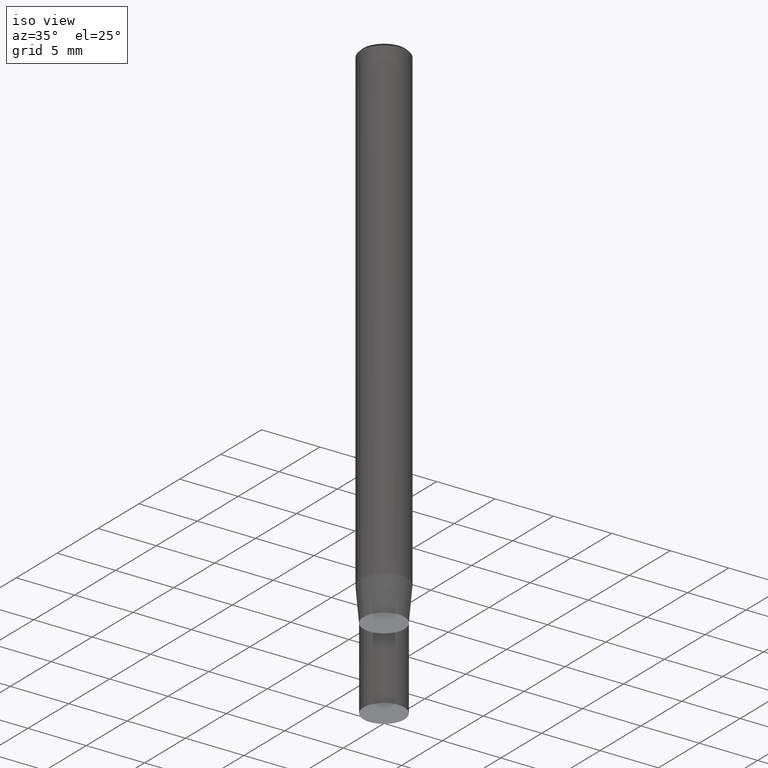
[diagram: clean part render]
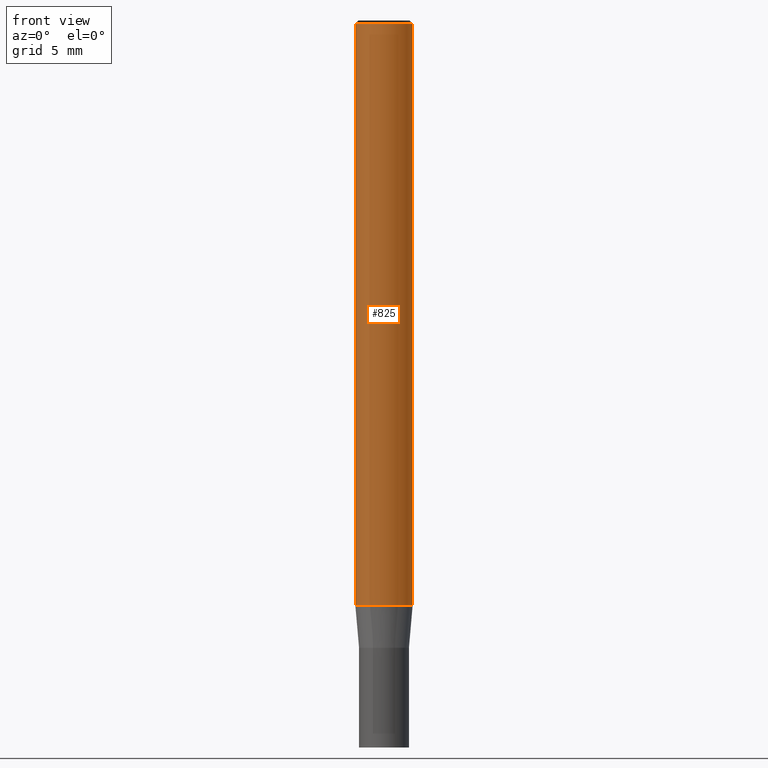
[diagram: tour spotlight — one face highlighted and labeled with its STEP entity id]
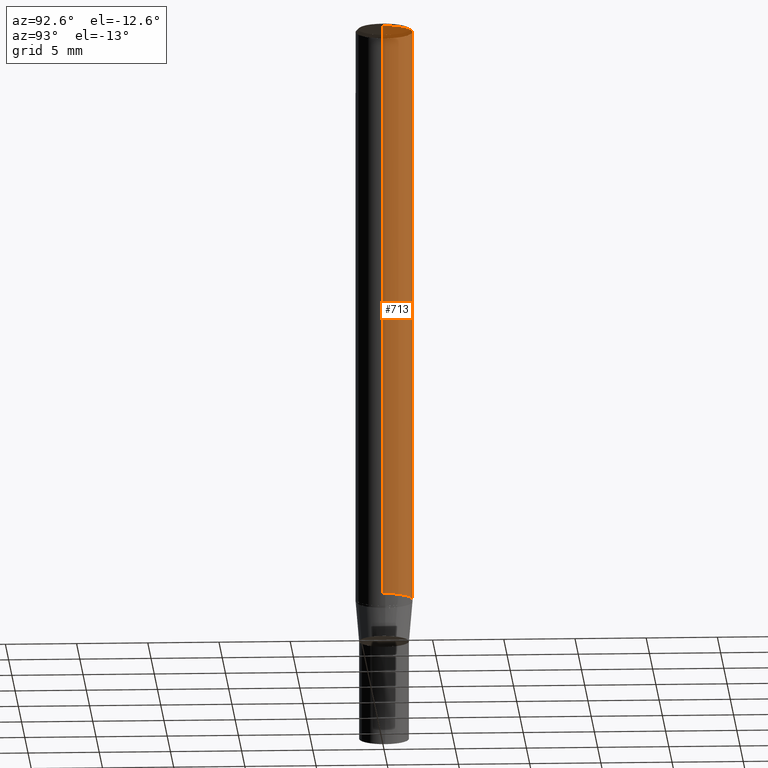
[diagram: tour spotlight — one face highlighted and labeled with its STEP entity id]
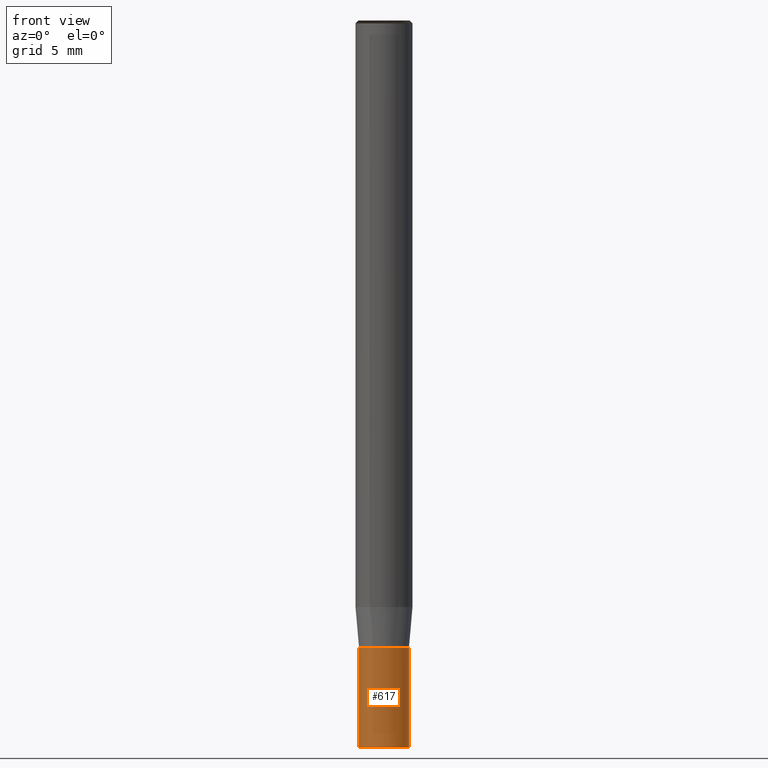
[diagram: tour spotlight — one face highlighted and labeled with its STEP entity id]
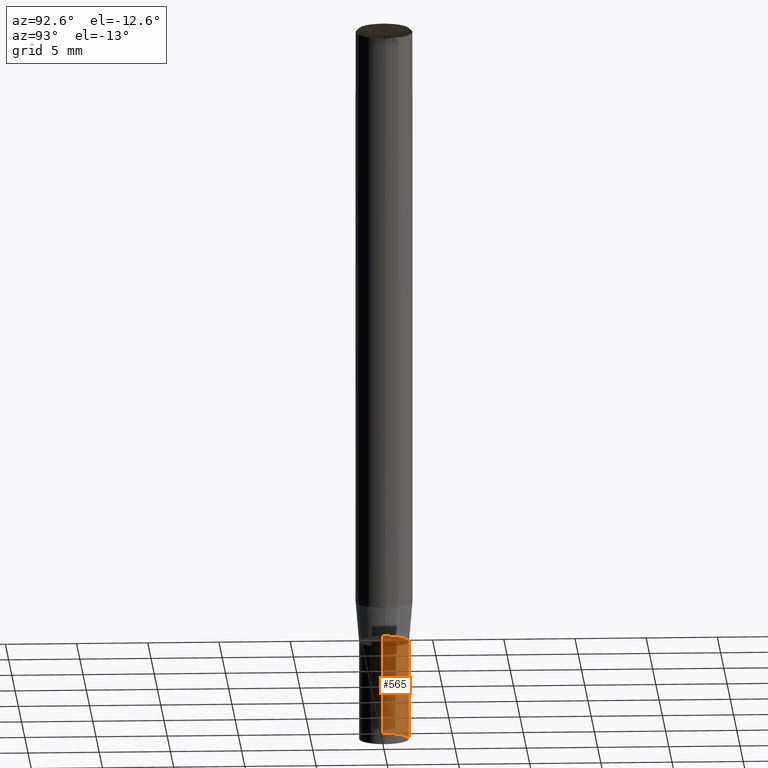
[diagram: tour spotlight — one face highlighted and labeled with its STEP entity id]
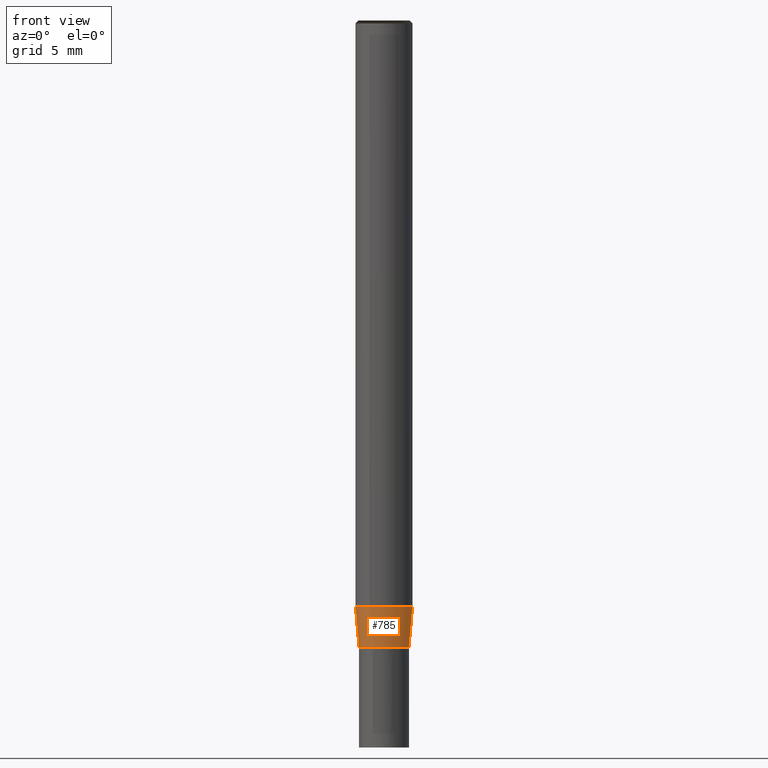
[diagram: tour spotlight — one face highlighted and labeled with its STEP entity id]
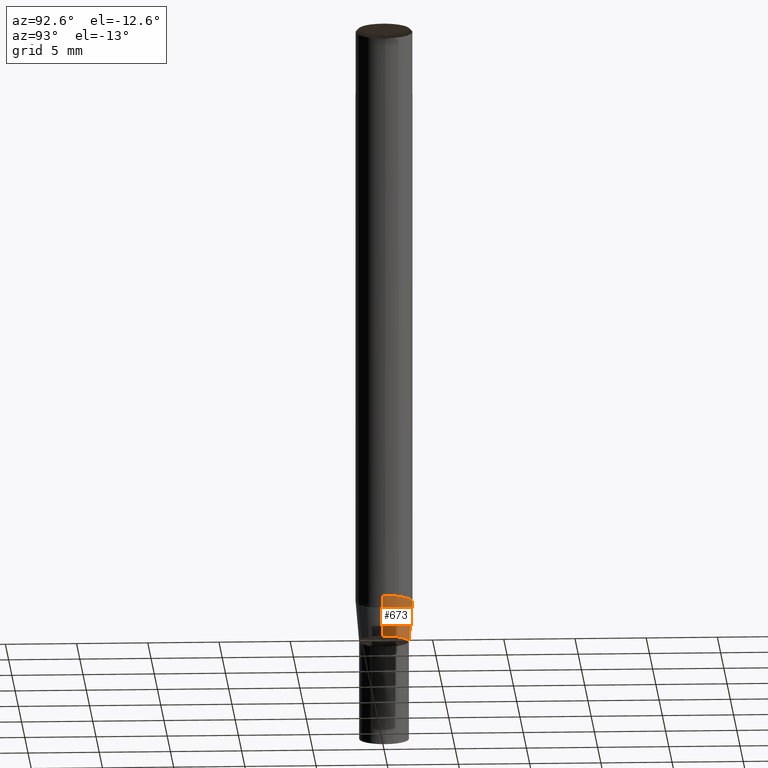
[diagram: tour spotlight — one face highlighted and labeled with its STEP entity id]
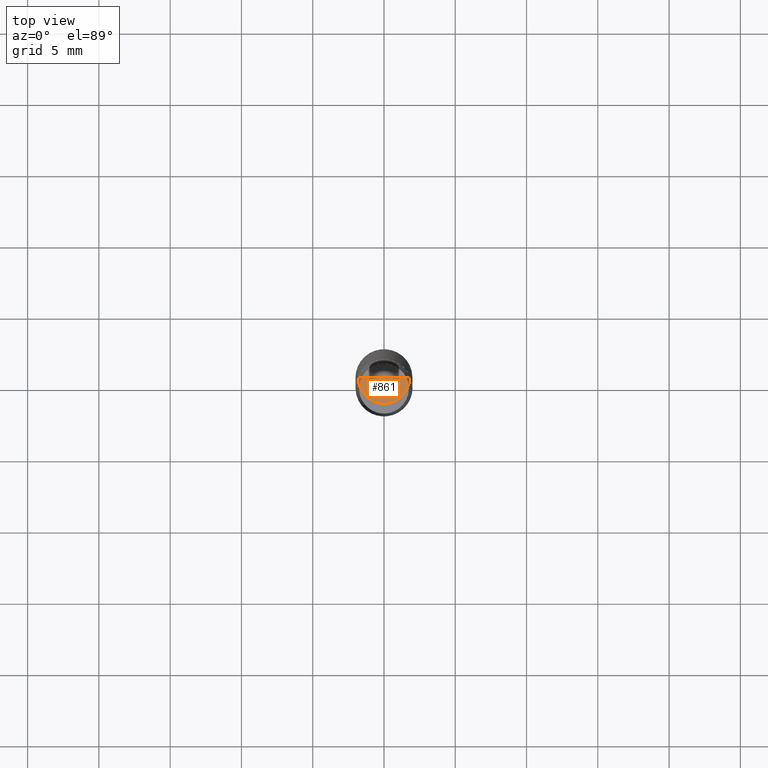
[diagram: tour spotlight — one face highlighted and labeled with its STEP entity id]
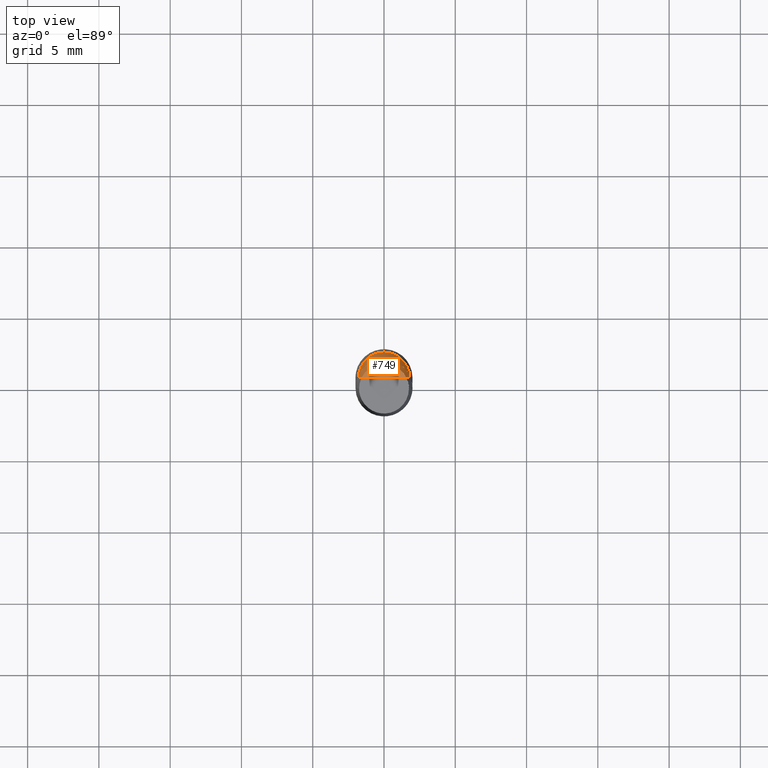
[diagram: tour spotlight — one face highlighted and labeled with its STEP entity id]
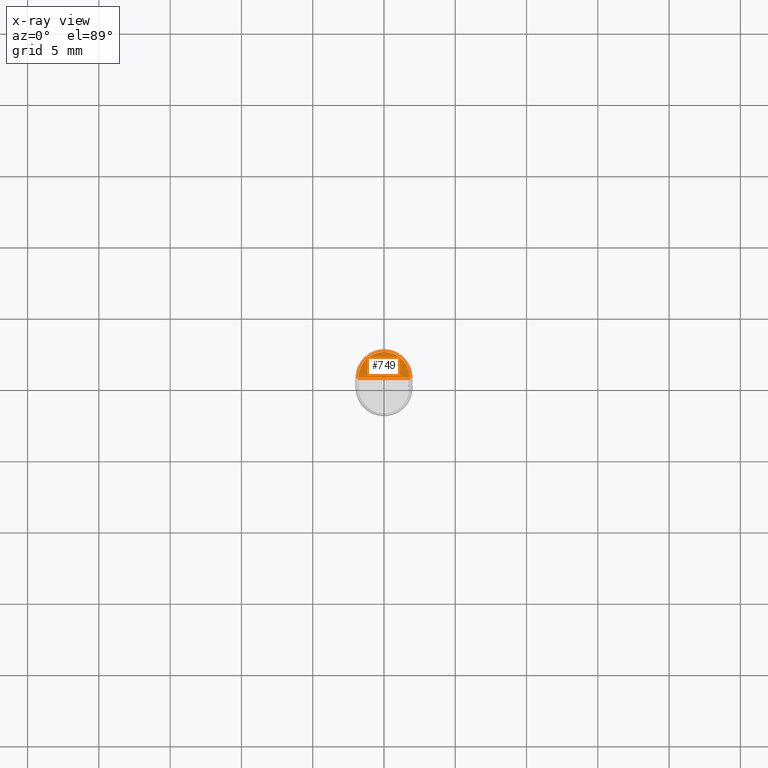
[diagram: x-ray of the same camera — body ghosted, this tour face saturated]
A machine part: a face-by-face anatomy tour. The part has 18 B-rep faces; the first image is the clean iso view, then the 8 largest visible faces are spotlighted one at a time (largest first), each with its STEP entity span.

Face 1 — front view, entity #825. In plain terms, the highlighted face is a freeform B-spline surface patch.
Definition (entity closure, byte-faithful):
#496=CARTESIAN_POINT('',(2.0,0.0,0.0));
#500=CARTESIAN_POINT('',(-2.0,0.0,0.0));
#501=CARTESIAN_POINT('',(2.0,0.0,40.8));
#505=CARTESIAN_POINT('',(-2.0,0.0,40.8));
#515=CARTESIAN_POINT('',(-2.0,-2.0,0.0));
#516=CARTESIAN_POINT('',(0.0,-2.0,0.0));
#517=CARTESIAN_POINT('',(2.0,-2.0,0.0));
#518=CARTESIAN_POINT('',(-2.0,-2.0,40.8));
#519=CARTESIAN_POINT('',(0.0,-2.0,40.8));
#520=CARTESIAN_POINT('',(2.0,-2.0,40.8));
#806=(
BOUNDED_SURFACE()
B_SPLINE_SURFACE(1,2,(
(#500,#515,#516,#517,#496),
(#505,#518,#519,#520,#501)
), .UNSPECIFIED.,.F.,.F.,.F.)
B_SPLINE_SURFACE_WITH_KNOTS((2,2),(3,2,3),(
0.0,1.0),(
0.0,0.5,1.0), .UNSPECIFIED.)
GEOMETRIC_REPRESENTATION_ITEM()
RATIONAL_B_SPLINE_SURFACE(((1.0,0.707106781187,1.0,0.707106781187,1.0),
(1.0,0.707106781187,1.0,0.707106781187,1.0)
))
REPRESENTATION_ITEM('')
SURFACE()
);
#807=(
BOUNDED_CURVE()
B_SPLINE_CURVE(2,(#496,#517,#516,#515,#500),.UNSPECIFIED.,.F.,.F.)
B_SPLINE_CURVE_WITH_KNOTS((3,2,3),
(0.0,0.5,1.0),.UNSPECIFIED.)
CURVE()
GEOMETRIC_REPRESENTATION_ITEM()
RATIONAL_B_SPLINE_CURVE((1.0,0.707106781187,1.0,0.707106781187,1.0))
REPRESENTATION_ITEM('')
);
#808=(
BOUNDED_CURVE()
B_SPLINE_CURVE(1,(#500,#505),.UNSPECIFIED.,.F.,.F.)
B_SPLINE_CURVE_WITH_KNOTS((2,2),
(0.0,1.0),.UNSPECIFIED.)
CURVE()
GEOMETRIC_REPRESENTATION_ITEM()
RATIONAL_B_SPLINE_CURVE((1.0,1.0))
REPRESENTATION_ITEM('')
);
#809=(
BOUNDED_CURVE()
B_SPLINE_CURVE(2,(#505,#518,#519,#520,#501),.UNSPECIFIED.,.F.,.F.)
B_SPLINE_CURVE_WITH_KNOTS((3,2,3),
(0.0,0.5,1.0),.UNSPECIFIED.)
CURVE()
GEOMETRIC_REPRESENTATION_ITEM()
RATIONAL_B_SPLINE_CURVE((1.0,0.707106781187,1.0,0.707106781187,1.0))
REPRESENTATION_ITEM('')
);
#810=(
BOUNDED_CURVE()
B_SPLINE_CURVE(1,(#501,#496),.UNSPECIFIED.,.F.,.F.)
B_SPLINE_CURVE_WITH_KNOTS((2,2),
(0.0,1.0),.UNSPECIFIED.)
CURVE()
GEOMETRIC_REPRESENTATION_ITEM()
RATIONAL_B_SPLINE_CURVE((1.0,1.0))
REPRESENTATION_ITEM('')
);
#811=VERTEX_POINT('',#496);
#812=VERTEX_POINT('',#500);
#813=VERTEX_POINT('',#501);
#814=VERTEX_POINT('',#505);
#815=EDGE_CURVE('',#811,#812,#807,.T.);
#816=EDGE_CURVE('',#812,#814,#808,.T.);
#817=EDGE_CURVE('',#814,#813,#809,.T.);
#818=EDGE_CURVE('',#813,#811,#810,.T.);
#819=ORIENTED_EDGE('',*,*,#815,.T.);
#820=ORIENTED_EDGE('',*,*,#816,.T.);
#821=ORIENTED_EDGE('',*,*,#817,.T.);
#822=ORIENTED_EDGE('',*,*,#818,.T.);
#823=EDGE_LOOP('',(#819,#820,#821,#822));
#824=FACE_OUTER_BOUND('',#823,.T.);
#825=ADVANCED_FACE('',(#824),#806,.T.);

Face 2 — auxiliary view, entity #713. In plain terms, the highlighted face is a freeform B-spline surface patch.
Definition (entity closure, byte-faithful):
#496=CARTESIAN_POINT('',(2.0,0.0,0.0));
#497=CARTESIAN_POINT('',(2.0,2.0,0.0));
#498=CARTESIAN_POINT('',(0.0,2.0,0.0));
#499=CARTESIAN_POINT('',(-2.0,2.0,0.0));
#500=CARTESIAN_POINT('',(-2.0,0.0,0.0));
#501=CARTESIAN_POINT('',(2.0,0.0,40.8));
#502=CARTESIAN_POINT('',(2.0,2.0,40.8));
#503=CARTESIAN_POINT('',(0.0,2.0,40.8));
#504=CARTESIAN_POINT('',(-2.0,2.0,40.8));
#505=CARTESIAN_POINT('',(-2.0,0.0,40.8));
#694=(
BOUNDED_SURFACE()
B_SPLINE_SURFACE(1,2,(
(#496,#497,#498,#499,#500),
(#501,#502,#503,#504,#505)
), .UNSPECIFIED.,.F.,.F.,.F.)
B_SPLINE_SURFACE_WITH_KNOTS((2,2),(3,2,3),(
0.0,1.0),(
0.0,0.5,1.0), .UNSPECIFIED.)
GEOMETRIC_REPRESENTATION_ITEM()
RATIONAL_B_SPLINE_SURFACE(((1.0,0.707106781187,1.0,0.707106781187,1.0),
(1.0,0.707106781187,1.0,0.707106781187,1.0)
))
REPRESENTATION_ITEM('')
SURFACE()
);
#695=(
BOUNDED_CURVE()
B_SPLINE_CURVE(2,(#500,#499,#498,#497,#496),.UNSPECIFIED.,.F.,.F.)
B_SPLINE_CURVE_WITH_KNOTS((3,2,3),
(0.0,0.5,1.0),.UNSPECIFIED.)
CURVE()
GEOMETRIC_REPRESENTATION_ITEM()
RATIONAL_B_SPLINE_CURVE((1.0,0.707106781187,1.0,0.707106781187,1.0))
REPRESENTATION_ITEM('')
);
#696=(
BOUNDED_CURVE()
B_SPLINE_CURVE(1,(#496,#501),.UNSPECIFIED.,.F.,.F.)
B_SPLINE_CURVE_WITH_KNOTS((2,2),
(0.0,1.0),.UNSPECIFIED.)
CURVE()
GEOMETRIC_REPRESENTATION_ITEM()
RATIONAL_B_SPLINE_CURVE((1.0,1.0))
REPRESENTATION_ITEM('')
);
#697=(
BOUNDED_CURVE()
B_SPLINE_CURVE(2,(#501,#502,#503,#504,#505),.UNSPECIFIED.,.F.,.F.)
B_SPLINE_CURVE_WITH_KNOTS((3,2,3),
(0.0,0.5,1.0),.UNSPECIFIED.)
CURVE()
GEOMETRIC_REPRESENTATION_ITEM()
RATIONAL_B_SPLINE_CURVE((1.0,0.707106781187,1.0,0.707106781187,1.0))
REPRESENTATION_ITEM('')
);
#698=(
BOUNDED_CURVE()
B_SPLINE_CURVE(1,(#505,#500),.UNSPECIFIED.,.F.,.F.)
B_SPLINE_CURVE_WITH_KNOTS((2,2),
(0.0,1.0),.UNSPECIFIED.)
CURVE()
GEOMETRIC_REPRESENTATION_ITEM()
RATIONAL_B_SPLINE_CURVE((1.0,1.0))
REPRESENTATION_ITEM('')
);
#699=VERTEX_POINT('',#496);
#700=VERTEX_POINT('',#500);
#701=VERTEX_POINT('',#501);
#702=VERTEX_POINT('',#505);
#703=EDGE_CURVE('',#700,#699,#695,.T.);
#704=EDGE_CURVE('',#699,#701,#696,.T.);
#705=EDGE_CURVE('',#701,#702,#697,.T.);
#706=EDGE_CURVE('',#702,#700,#698,.T.);
#707=ORIENTED_EDGE('',*,*,#703,.T.);
#708=ORIENTED_EDGE('',*,*,#704,.T.);
#709=ORIENTED_EDGE('',*,*,#705,.T.);
#710=ORIENTED_EDGE('',*,*,#706,.T.);
#711=EDGE_LOOP('',(#707,#708,#709,#710));
#712=FACE_OUTER_BOUND('',#711,.T.);
#713=ADVANCED_FACE('',(#712),#694,.T.);

Face 3 — front view, entity #617. In plain terms, the highlighted face is a freeform B-spline surface patch.
Definition (entity closure, byte-faithful):
#109=CARTESIAN_POINT('',(0.0,-1.75,-10.0));
#475=CARTESIAN_POINT('',(1.75,0.0,-10.0));
#479=CARTESIAN_POINT('',(-1.75,0.0,-10.0));
#480=CARTESIAN_POINT('',(1.75,0.0,-3.0));
#484=CARTESIAN_POINT('',(-1.75,0.0,-3.0));
#486=CARTESIAN_POINT('',(-1.75,-1.75,-10.0));
#487=CARTESIAN_POINT('',(1.75,-1.75,-10.0));
#488=CARTESIAN_POINT('',(-1.75,-1.75,-3.0));
#489=CARTESIAN_POINT('',(0.0,-1.75,-3.0));
#490=CARTESIAN_POINT('',(1.75,-1.75,-3.0));
#598=(
BOUNDED_SURFACE()
B_SPLINE_SURFACE(1,2,(
(#479,#486,#109,#487,#475),
(#484,#488,#489,#490,#480)
), .UNSPECIFIED.,.F.,.F.,.F.)
B_SPLINE_SURFACE_WITH_KNOTS((2,2),(3,2,3),(
0.0,1.0),(
0.0,0.5,1.0), .UNSPECIFIED.)
GEOMETRIC_REPRESENTATION_ITEM()
RATIONAL_B_SPLINE_SURFACE(((1.0,0.707106781187,1.0,0.707106781187,1.0),
(1.0,0.707106781187,1.0,0.707106781187,1.0)
))
REPRESENTATION_ITEM('')
SURFACE()
);
#599=(
BOUNDED_CURVE()
B_SPLINE_CURVE(2,(#475,#487,#109,#486,#479),.UNSPECIFIED.,.F.,.F.)
B_SPLINE_CURVE_WITH_KNOTS((3,2,3),
(0.0,0.5,1.0),.UNSPECIFIED.)
CURVE()
GEOMETRIC_REPRESENTATION_ITEM()
RATIONAL_B_SPLINE_CURVE((1.0,0.707106781187,1.0,0.707106781187,1.0))
REPRESENTATION_ITEM('')
);
#600=(
BOUNDED_CURVE()
B_SPLINE_CURVE(1,(#479,#484),.UNSPECIFIED.,.F.,.F.)
B_SPLINE_CURVE_WITH_KNOTS((2,2),
(0.0,1.0),.UNSPECIFIED.)
CURVE()
GEOMETRIC_REPRESENTATION_ITEM()
RATIONAL_B_SPLINE_CURVE((1.0,1.0))
REPRESENTATION_ITEM('')
);
#601=(
BOUNDED_CURVE()
B_SPLINE_CURVE(2,(#484,#488,#489,#490,#480),.UNSPECIFIED.,.F.,.F.)
B_SPLINE_CURVE_WITH_KNOTS((3,2,3),
(0.0,0.5,1.0),.UNSPECIFIED.)
CURVE()
GEOMETRIC_REPRESENTATION_ITEM()
RATIONAL_B_SPLINE_CURVE((1.0,0.707106781187,1.0,0.707106781187,1.0))
REPRESENTATION_ITEM('')
);
#602=(
BOUNDED_CURVE()
B_SPLINE_CURVE(1,(#480,#475),.UNSPECIFIED.,.F.,.F.)
B_SPLINE_CURVE_WITH_KNOTS((2,2),
(0.0,1.0),.UNSPECIFIED.)
CURVE()
GEOMETRIC_REPRESENTATION_ITEM()
RATIONAL_B_SPLINE_CURVE((1.0,1.0))
REPRESENTATION_ITEM('')
);
#603=VERTEX_POINT('',#475);
#604=VERTEX_POINT('',#479);
#605=VERTEX_POINT('',#480);
#606=VERTEX_POINT('',#484);
#607=EDGE_CURVE('',#603,#604,#599,.T.);
#608=EDGE_CURVE('',#604,#606,#600,.T.);
#609=EDGE_CURVE('',#606,#605,#601,.T.);
#610=EDGE_CURVE('',#605,#603,#602,.T.);
#611=ORIENTED_EDGE('',*,*,#607,.T.);
#612=ORIENTED_EDGE('',*,*,#608,.T.);
#613=ORIENTED_EDGE('',*,*,#609,.T.);
#614=ORIENTED_EDGE('',*,*,#610,.T.);
#615=EDGE_LOOP('',(#611,#612,#613,#614));
#616=FACE_OUTER_BOUND('',#615,.T.);
#617=ADVANCED_FACE('',(#616),#598,.T.);

Face 4 — auxiliary view, entity #565. In plain terms, the highlighted face is a freeform B-spline surface patch.
Definition (entity closure, byte-faithful):
#475=CARTESIAN_POINT('',(1.75,0.0,-10.0));
#476=CARTESIAN_POINT('',(1.75,1.75,-10.0));
#477=CARTESIAN_POINT('',(0.0,1.75,-10.0));
#478=CARTESIAN_POINT('',(-1.75,1.75,-10.0));
#479=CARTESIAN_POINT('',(-1.75,0.0,-10.0));
#480=CARTESIAN_POINT('',(1.75,0.0,-3.0));
#481=CARTESIAN_POINT('',(1.75,1.75,-3.0));
#482=CARTESIAN_POINT('',(0.0,1.75,-3.0));
#483=CARTESIAN_POINT('',(-1.75,1.75,-3.0));
#484=CARTESIAN_POINT('',(-1.75,0.0,-3.0));
#546=(
BOUNDED_SURFACE()
B_SPLINE_SURFACE(1,2,(
(#475,#476,#477,#478,#479),
(#480,#481,#482,#483,#484)
), .UNSPECIFIED.,.F.,.F.,.F.)
B_SPLINE_SURFACE_WITH_KNOTS((2,2),(3,2,3),(
0.0,1.0),(
0.0,0.5,1.0), .UNSPECIFIED.)
GEOMETRIC_REPRESENTATION_ITEM()
RATIONAL_B_SPLINE_SURFACE(((1.0,0.707106781187,1.0,0.707106781187,1.0),
(1.0,0.707106781187,1.0,0.707106781187,1.0)
))
REPRESENTATION_ITEM('')
SURFACE()
);
#547=(
BOUNDED_CURVE()
B_SPLINE_CURVE(2,(#479,#478,#477,#476,#475),.UNSPECIFIED.,.F.,.F.)
B_SPLINE_CURVE_WITH_KNOTS((3,2,3),
(0.0,0.5,1.0),.UNSPECIFIED.)
CURVE()
GEOMETRIC_REPRESENTATION_ITEM()
RATIONAL_B_SPLINE_CURVE((1.0,0.707106781187,1.0,0.707106781187,1.0))
REPRESENTATION_ITEM('')
);
#548=(
BOUNDED_CURVE()
B_SPLINE_CURVE(1,(#475,#480),.UNSPECIFIED.,.F.,.F.)
B_SPLINE_CURVE_WITH_KNOTS((2,2),
(0.0,1.0),.UNSPECIFIED.)
CURVE()
GEOMETRIC_REPRESENTATION_ITEM()
RATIONAL_B_SPLINE_CURVE((1.0,1.0))
REPRESENTATION_ITEM('')
);
#549=(
BOUNDED_CURVE()
B_SPLINE_CURVE(2,(#480,#481,#482,#483,#484),.UNSPECIFIED.,.F.,.F.)
B_SPLINE_CURVE_WITH_KNOTS((3,2,3),
(0.0,0.5,1.0),.UNSPECIFIED.)
CURVE()
GEOMETRIC_REPRESENTATION_ITEM()
RATIONAL_B_SPLINE_CURVE((1.0,0.707106781187,1.0,0.707106781187,1.0))
REPRESENTATION_ITEM('')
);
#550=(
BOUNDED_CURVE()
B_SPLINE_CURVE(1,(#484,#479),.UNSPECIFIED.,.F.,.F.)
B_SPLINE_CURVE_WITH_KNOTS((2,2),
(0.0,1.0),.UNSPECIFIED.)
CURVE()
GEOMETRIC_REPRESENTATION_ITEM()
RATIONAL_B_SPLINE_CURVE((1.0,1.0))
REPRESENTATION_ITEM('')
);
#551=VERTEX_POINT('',#475);
#552=VERTEX_POINT('',#479);
#553=VERTEX_POINT('',#480);
#554=VERTEX_POINT('',#484);
#555=EDGE_CURVE('',#552,#551,#547,.T.);
#556=EDGE_CURVE('',#551,#553,#548,.T.);
#557=EDGE_CURVE('',#553,#554,#549,.T.);
#558=EDGE_CURVE('',#554,#552,#550,.T.);
#559=ORIENTED_EDGE('',*,*,#555,.T.);
#560=ORIENTED_EDGE('',*,*,#556,.T.);
#561=ORIENTED_EDGE('',*,*,#557,.T.);
#562=ORIENTED_EDGE('',*,*,#558,.T.);
#563=EDGE_LOOP('',(#559,#560,#561,#562));
#564=FACE_OUTER_BOUND('',#563,.T.);
#565=ADVANCED_FACE('',(#564),#546,.T.);

Face 5 — front view, entity #785. In plain terms, the highlighted face is a freeform B-spline surface patch.
Definition (entity closure, byte-faithful):
#480=CARTESIAN_POINT('',(1.75,0.0,-3.0));
#484=CARTESIAN_POINT('',(-1.75,0.0,-3.0));
#488=CARTESIAN_POINT('',(-1.75,-1.75,-3.0));
#489=CARTESIAN_POINT('',(0.0,-1.75,-3.0));
#490=CARTESIAN_POINT('',(1.75,-1.75,-3.0));
#491=CARTESIAN_POINT('',(2.0,0.0,-0.14248692431));
#495=CARTESIAN_POINT('',(-2.0,0.0,-0.14248692431));
#512=CARTESIAN_POINT('',(-2.0,-2.0,-0.14248692431));
#513=CARTESIAN_POINT('',(0.0,-2.0,-0.14248692431));
#514=CARTESIAN_POINT('',(2.0,-2.0,-0.14248692431));
#766=(
BOUNDED_SURFACE()
B_SPLINE_SURFACE(1,2,(
(#484,#488,#489,#490,#480),
(#495,#512,#513,#514,#491)
), .UNSPECIFIED.,.F.,.F.,.F.)
B_SPLINE_SURFACE_WITH_KNOTS((2,2),(3,2,3),(
0.0,1.0),(
0.0,0.5,1.0), .UNSPECIFIED.)
GEOMETRIC_REPRESENTATION_ITEM()
RATIONAL_B_SPLINE_SURFACE(((1.0,0.707106781187,1.0,0.707106781187,1.0),
(1.0,0.707106781187,1.0,0.707106781187,1.0)
))
REPRESENTATION_ITEM('')
SURFACE()
);
#767=(
BOUNDED_CURVE()
B_SPLINE_CURVE(2,(#480,#490,#489,#488,#484),.UNSPECIFIED.,.F.,.F.)
B_SPLINE_CURVE_WITH_KNOTS((3,2,3),
(0.0,0.5,1.0),.UNSPECIFIED.)
CURVE()
GEOMETRIC_REPRESENTATION_ITEM()
RATIONAL_B_SPLINE_CURVE((1.0,0.707106781187,1.0,0.707106781187,1.0))
REPRESENTATION_ITEM('')
);
#768=(
BOUNDED_CURVE()
B_SPLINE_CURVE(1,(#484,#495),.UNSPECIFIED.,.F.,.F.)
B_SPLINE_CURVE_WITH_KNOTS((2,2),
(0.0,1.0),.UNSPECIFIED.)
CURVE()
GEOMETRIC_REPRESENTATION_ITEM()
RATIONAL_B_SPLINE_CURVE((1.0,1.0))
REPRESENTATION_ITEM('')
);
#769=(
BOUNDED_CURVE()
B_SPLINE_CURVE(2,(#495,#512,#513,#514,#491),.UNSPECIFIED.,.F.,.F.)
B_SPLINE_CURVE_WITH_KNOTS((3,2,3),
(0.0,0.5,1.0),.UNSPECIFIED.)
CURVE()
GEOMETRIC_REPRESENTATION_ITEM()
RATIONAL_B_SPLINE_CURVE((1.0,0.707106781187,1.0,0.707106781187,1.0))
REPRESENTATION_ITEM('')
);
#770=(
BOUNDED_CURVE()
B_SPLINE_CURVE(1,(#491,#480),.UNSPECIFIED.,.F.,.F.)
B_SPLINE_CURVE_WITH_KNOTS((2,2),
(0.0,1.0),.UNSPECIFIED.)
CURVE()
GEOMETRIC_REPRESENTATION_ITEM()
RATIONAL_B_SPLINE_CURVE((1.0,1.0))
REPRESENTATION_ITEM('')
);
#771=VERTEX_POINT('',#480);
#772=VERTEX_POINT('',#484);
#773=VERTEX_POINT('',#491);
#774=VERTEX_POINT('',#495);
#775=EDGE_CURVE('',#771,#772,#767,.T.);
#776=EDGE_CURVE('',#772,#774,#768,.T.);
#777=EDGE_CURVE('',#774,#773,#769,.T.);
#778=EDGE_CURVE('',#773,#771,#770,.T.);
#779=ORIENTED_EDGE('',*,*,#775,.T.);
#780=ORIENTED_EDGE('',*,*,#776,.T.);
#781=ORIENTED_EDGE('',*,*,#777,.T.);
#782=ORIENTED_EDGE('',*,*,#778,.T.);
#783=EDGE_LOOP('',(#779,#780,#781,#782));
#784=FACE_OUTER_BOUND('',#783,.T.);
#785=ADVANCED_FACE('',(#784),#766,.T.);

Face 6 — auxiliary view, entity #673. In plain terms, the highlighted face is a freeform B-spline surface patch.
Definition (entity closure, byte-faithful):
#480=CARTESIAN_POINT('',(1.75,0.0,-3.0));
#481=CARTESIAN_POINT('',(1.75,1.75,-3.0));
#482=CARTESIAN_POINT('',(0.0,1.75,-3.0));
#483=CARTESIAN_POINT('',(-1.75,1.75,-3.0));
#484=CARTESIAN_POINT('',(-1.75,0.0,-3.0));
#491=CARTESIAN_POINT('',(2.0,0.0,-0.14248692431));
#492=CARTESIAN_POINT('',(2.0,2.0,-0.14248692431));
#493=CARTESIAN_POINT('',(0.0,2.0,-0.14248692431));
#494=CARTESIAN_POINT('',(-2.0,2.0,-0.14248692431));
#495=CARTESIAN_POINT('',(-2.0,0.0,-0.14248692431));
#654=(
BOUNDED_SURFACE()
B_SPLINE_SURFACE(1,2,(
(#480,#481,#482,#483,#484),
(#491,#492,#493,#494,#495)
), .UNSPECIFIED.,.F.,.F.,.F.)
B_SPLINE_SURFACE_WITH_KNOTS((2,2),(3,2,3),(
0.0,1.0),(
0.0,0.5,1.0), .UNSPECIFIED.)
GEOMETRIC_REPRESENTATION_ITEM()
RATIONAL_B_SPLINE_SURFACE(((1.0,0.707106781187,1.0,0.707106781187,1.0),
(1.0,0.707106781187,1.0,0.707106781187,1.0)
))
REPRESENTATION_ITEM('')
SURFACE()
);
#655=(
BOUNDED_CURVE()
B_SPLINE_CURVE(2,(#484,#483,#482,#481,#480),.UNSPECIFIED.,.F.,.F.)
B_SPLINE_CURVE_WITH_KNOTS((3,2,3),
(0.0,0.5,1.0),.UNSPECIFIED.)
CURVE()
GEOMETRIC_REPRESENTATION_ITEM()
RATIONAL_B_SPLINE_CURVE((1.0,0.707106781187,1.0,0.707106781187,1.0))
REPRESENTATION_ITEM('')
);
#656=(
BOUNDED_CURVE()
B_SPLINE_CURVE(1,(#480,#491),.UNSPECIFIED.,.F.,.F.)
B_SPLINE_CURVE_WITH_KNOTS((2,2),
(0.0,1.0),.UNSPECIFIED.)
CURVE()
GEOMETRIC_REPRESENTATION_ITEM()
RATIONAL_B_SPLINE_CURVE((1.0,1.0))
REPRESENTATION_ITEM('')
);
#657=(
BOUNDED_CURVE()
B_SPLINE_CURVE(2,(#491,#492,#493,#494,#495),.UNSPECIFIED.,.F.,.F.)
B_SPLINE_CURVE_WITH_KNOTS((3,2,3),
(0.0,0.5,1.0),.UNSPECIFIED.)
CURVE()
GEOMETRIC_REPRESENTATION_ITEM()
RATIONAL_B_SPLINE_CURVE((1.0,0.707106781187,1.0,0.707106781187,1.0))
REPRESENTATION_ITEM('')
);
#658=(
BOUNDED_CURVE()
B_SPLINE_CURVE(1,(#495,#484),.UNSPECIFIED.,.F.,.F.)
B_SPLINE_CURVE_WITH_KNOTS((2,2),
(0.0,1.0),.UNSPECIFIED.)
CURVE()
GEOMETRIC_REPRESENTATION_ITEM()
RATIONAL_B_SPLINE_CURVE((1.0,1.0))
REPRESENTATION_ITEM('')
);
#659=VERTEX_POINT('',#480);
#660=VERTEX_POINT('',#484);
#661=VERTEX_POINT('',#491);
#662=VERTEX_POINT('',#495);
#663=EDGE_CURVE('',#660,#659,#655,.T.);
#664=EDGE_CURVE('',#659,#661,#656,.T.);
#665=EDGE_CURVE('',#661,#662,#657,.T.);
#666=EDGE_CURVE('',#662,#660,#658,.T.);
#667=ORIENTED_EDGE('',*,*,#663,.T.);
#668=ORIENTED_EDGE('',*,*,#664,.T.);
#669=ORIENTED_EDGE('',*,*,#665,.T.);
#670=ORIENTED_EDGE('',*,*,#666,.T.);
#671=EDGE_LOOP('',(#667,#668,#669,#670));
#672=FACE_OUTER_BOUND('',#671,.T.);
#673=ADVANCED_FACE('',(#672),#654,.T.);

Face 7 — top view, entity #861. In plain terms, the highlighted face is a freeform B-spline surface patch.
Definition (entity closure, byte-faithful):
#506=CARTESIAN_POINT('',(1.8,0.0,41.0));
#510=CARTESIAN_POINT('',(-1.8,0.0,41.0));
#511=CARTESIAN_POINT('',(0.0,0.0,41.0));
#521=CARTESIAN_POINT('',(-1.8,-1.8,41.0));
#522=CARTESIAN_POINT('',(0.0,-1.8,41.0));
#523=CARTESIAN_POINT('',(1.8,-1.8,41.0));
#846=(
BOUNDED_SURFACE()
B_SPLINE_SURFACE(1,2,(
(#510,#521,#522,#523,#506),
(#511,#511,#511,#511,#511)
), .UNSPECIFIED.,.F.,.F.,.F.)
B_SPLINE_SURFACE_WITH_KNOTS((2,2),(3,2,3),(
0.0,1.0),(
0.0,0.5,1.0), .UNSPECIFIED.)
GEOMETRIC_REPRESENTATION_ITEM()
RATIONAL_B_SPLINE_SURFACE(((1.0,0.707106781187,1.0,0.707106781187,1.0),
(1.0,0.707106781187,1.0,0.707106781187,1.0)
))
REPRESENTATION_ITEM('')
SURFACE()
);
#847=(
BOUNDED_CURVE()
B_SPLINE_CURVE(2,(#506,#523,#522,#521,#510),.UNSPECIFIED.,.F.,.F.)
B_SPLINE_CURVE_WITH_KNOTS((3,2,3),
(0.0,0.5,1.0),.UNSPECIFIED.)
CURVE()
GEOMETRIC_REPRESENTATION_ITEM()
RATIONAL_B_SPLINE_CURVE((1.0,0.707106781187,1.0,0.707106781187,1.0))
REPRESENTATION_ITEM('')
);
#848=(
BOUNDED_CURVE()
B_SPLINE_CURVE(1,(#510,#511),.UNSPECIFIED.,.F.,.F.)
B_SPLINE_CURVE_WITH_KNOTS((2,2),
(0.0,1.0),.UNSPECIFIED.)
CURVE()
GEOMETRIC_REPRESENTATION_ITEM()
RATIONAL_B_SPLINE_CURVE((1.0,1.0))
REPRESENTATION_ITEM('')
);
#849=(
BOUNDED_CURVE()
B_SPLINE_CURVE(1,(#511,#506),.UNSPECIFIED.,.F.,.F.)
B_SPLINE_CURVE_WITH_KNOTS((2,2),
(0.0,1.0),.UNSPECIFIED.)
CURVE()
GEOMETRIC_REPRESENTATION_ITEM()
RATIONAL_B_SPLINE_CURVE((1.0,1.0))
REPRESENTATION_ITEM('')
);
#850=VERTEX_POINT('',#506);
#851=VERTEX_POINT('',#510);
#852=VERTEX_POINT('',#511);
#853=EDGE_CURVE('',#850,#851,#847,.T.);
#854=EDGE_CURVE('',#851,#852,#848,.T.);
#855=EDGE_CURVE('',#852,#850,#849,.T.);
#856=ORIENTED_EDGE('',*,*,#853,.T.);
#857=ORIENTED_EDGE('',*,*,#854,.T.);
#858=ORIENTED_EDGE('',*,*,#855,.T.);
#859=EDGE_LOOP('',(#856,#857,#858));
#860=FACE_OUTER_BOUND('',#859,.T.);
#861=ADVANCED_FACE('',(#860),#846,.T.);

Face 8 — top view, entity #749. An x-ray twin of the same camera follows (body ghosted, this face saturated) — the face is partly hidden behind the body. In plain terms, the highlighted face is a freeform B-spline surface patch.
Definition (entity closure, byte-faithful):
#506=CARTESIAN_POINT('',(1.8,0.0,41.0));
#507=CARTESIAN_POINT('',(1.8,1.8,41.0));
#508=CARTESIAN_POINT('',(0.0,1.8,41.0));
#509=CARTESIAN_POINT('',(-1.8,1.8,41.0));
#510=CARTESIAN_POINT('',(-1.8,0.0,41.0));
#511=CARTESIAN_POINT('',(0.0,0.0,41.0));
#734=(
BOUNDED_SURFACE()
B_SPLINE_SURFACE(1,2,(
(#506,#507,#508,#509,#510),
(#511,#511,#511,#511,#511)
), .UNSPECIFIED.,.F.,.F.,.F.)
B_SPLINE_SURFACE_WITH_KNOTS((2,2),(3,2,3),(
0.0,1.0),(
0.0,0.5,1.0), .UNSPECIFIED.)
GEOMETRIC_REPRESENTATION_ITEM()
RATIONAL_B_SPLINE_SURFACE(((1.0,0.707106781187,1.0,0.707106781187,1.0),
(1.0,0.707106781187,1.0,0.707106781187,1.0)
))
REPRESENTATION_ITEM('')
SURFACE()
);
#735=(
BOUNDED_CURVE()
B_SPLINE_CURVE(2,(#510,#509,#508,#507,#506),.UNSPECIFIED.,.F.,.F.)
B_SPLINE_CURVE_WITH_KNOTS((3,2,3),
(0.0,0.5,1.0),.UNSPECIFIED.)
CURVE()
GEOMETRIC_REPRESENTATION_ITEM()
RATIONAL_B_SPLINE_CURVE((1.0,0.707106781187,1.0,0.707106781187,1.0))
REPRESENTATION_ITEM('')
);
#736=(
BOUNDED_CURVE()
B_SPLINE_CURVE(1,(#506,#511),.UNSPECIFIED.,.F.,.F.)
B_SPLINE_CURVE_WITH_KNOTS((2,2),
(0.0,1.0),.UNSPECIFIED.)
CURVE()
GEOMETRIC_REPRESENTATION_ITEM()
RATIONAL_B_SPLINE_CURVE((1.0,1.0))
REPRESENTATION_ITEM('')
);
#737=(
BOUNDED_CURVE()
B_SPLINE_CURVE(1,(#511,#510),.UNSPECIFIED.,.F.,.F.)
B_SPLINE_CURVE_WITH_KNOTS((2,2),
(0.0,1.0),.UNSPECIFIED.)
CURVE()
GEOMETRIC_REPRESENTATION_ITEM()
RATIONAL_B_SPLINE_CURVE((1.0,1.0))
REPRESENTATION_ITEM('')
);
#738=VERTEX_POINT('',#506);
#739=VERTEX_POINT('',#510);
#740=VERTEX_POINT('',#511);
#741=EDGE_CURVE('',#739,#738,#735,.T.);
#742=EDGE_CURVE('',#738,#740,#736,.T.);
#743=EDGE_CURVE('',#740,#739,#737,.T.);
#744=ORIENTED_EDGE('',*,*,#741,.T.);
#745=ORIENTED_EDGE('',*,*,#742,.T.);
#746=ORIENTED_EDGE('',*,*,#743,.T.);
#747=EDGE_LOOP('',(#744,#745,#746));
#748=FACE_OUTER_BOUND('',#747,.T.);
#749=ADVANCED_FACE('',(#748),#734,.T.);